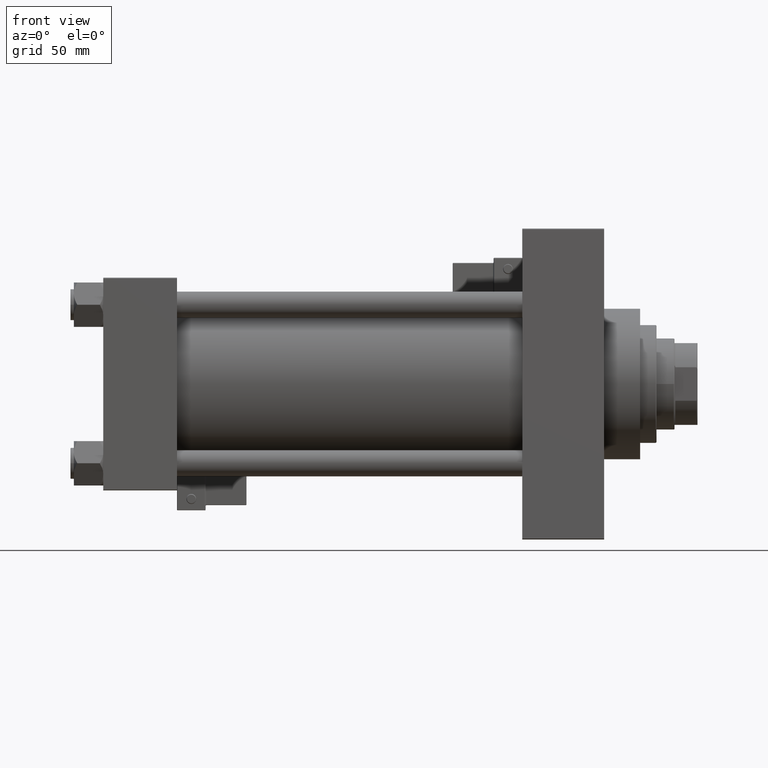
[diagram: clean part render]
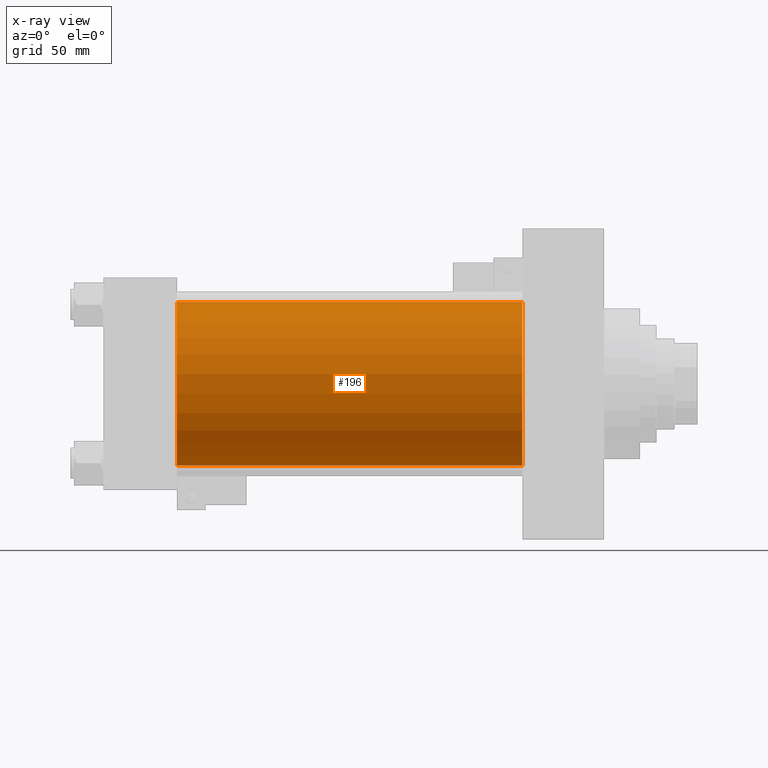
[diagram: x-ray — body ghosted, one internal face saturated and labeled with its STEP entity id]
A machine part, front view, then the same camera in x-ray: the body is ghosted and one INTERNAL B-rep face — a face not visible from any outside direction — is saturated and labeled: STEP entity #196.
In plain terms, the highlighted cylindrical surface (partial cylindrical patch) has radius 50 mm, axis along (-1, -0, -0).
Its self-contained STEP definition (entity closure, byte-faithful):
#21 = CARTESIAN_POINT ( 'NONE',  ( 256.0000000000000000, 3.521148781771555838E-15, -50.00000000000000000 ) ) ;
#196 = ADVANCED_FACE ( 'NONE', ( #2962 ), #30033, .F. ) ;
#227 = DIRECTION ( 'NONE',  ( 1.000000000000000000, 0.000000000000000000, 0.000000000000000000 ) ) ;
#1240 = VERTEX_POINT ( 'NONE', #47176 ) ;
#2962 = FACE_OUTER_BOUND ( 'NONE', #46068, .T. ) ;
#4714 = DIRECTION ( 'NONE',  ( 0.000000000000000000, 0.000000000000000000, -1.000000000000000000 ) ) ;
#6756 = DIRECTION ( 'NONE',  ( -1.000000000000000000, -0.000000000000000000, -0.000000000000000000 ) ) ;
#8563 = DIRECTION ( 'NONE',  ( 0.000000000000000000, 0.000000000000000000, -1.000000000000000000 ) ) ;
#10247 = CIRCLE ( 'NONE', #44111, 50.00000000000000000 ) ;
#11905 = DIRECTION ( 'NONE',  ( -1.000000000000000000, -0.000000000000000000, -0.000000000000000000 ) ) ;
#13447 = CARTESIAN_POINT ( 'NONE',  ( 45.00000000000000000, -2.602085213965210642E-15, 50.00000000000000000 ) ) ;
#13596 = CARTESIAN_POINT ( 'NONE',  ( 256.0000000000000000, -2.602085213965210642E-15, 50.00000000000000000 ) ) ;
#14691 = DIRECTION ( 'NONE',  ( -1.000000000000000000, -0.000000000000000000, -0.000000000000000000 ) ) ;
#16792 = CIRCLE ( 'NONE', #27301, 50.00000000000000000 ) ;
#18744 = CARTESIAN_POINT ( 'NONE',  ( 256.0000000000000000, 3.521148781771555838E-15, -50.00000000000000000 ) ) ;
#21123 = EDGE_CURVE ( 'NONE', #45427, #35701, #22533, .T. ) ;
#22533 = LINE ( 'NONE', #30619, #29129 ) ;
#24466 = VERTEX_POINT ( 'NONE', #21 ) ;
#27301 = AXIS2_PLACEMENT_3D ( 'NONE', #31583, #227, #8563 ) ;
#29129 = VECTOR ( 'NONE', #11905, 1000.000000000000000 ) ;
#30033 = CYLINDRICAL_SURFACE ( 'NONE', #45752, 50.00000000000000000 ) ;
#30619 = CARTESIAN_POINT ( 'NONE',  ( 256.0000000000000000, -2.602085213965210642E-15, 50.00000000000000000 ) ) ;
#31583 = CARTESIAN_POINT ( 'NONE',  ( 256.0000000000000000, -2.602085213965210642E-15, 0.000000000000000000 ) ) ;
#35701 = VERTEX_POINT ( 'NONE', #13447 ) ;
#36803 = ORIENTED_EDGE ( 'NONE', *, *, #45309, .T. ) ;
#39100 = CARTESIAN_POINT ( 'NONE',  ( 45.00000000000000000, -2.602085213965210642E-15, 0.000000000000000000 ) ) ;
#39346 = DIRECTION ( 'NONE',  ( 1.000000000000000000, 0.000000000000000000, 0.000000000000000000 ) ) ;
#40158 = VECTOR ( 'NONE', #14691, 1000.000000000000000 ) ;
#40513 = ORIENTED_EDGE ( 'NONE', *, *, #21123, .F. ) ;
#41392 = CARTESIAN_POINT ( 'NONE',  ( 256.0000000000000000, -2.602085213965210642E-15, 0.000000000000000000 ) ) ;
#42511 = ORIENTED_EDGE ( 'NONE', *, *, #43155, .F. ) ;
#43155 = EDGE_CURVE ( 'NONE', #35701, #1240, #10247, .T. ) ;
#44111 = AXIS2_PLACEMENT_3D ( 'NONE', #39100, #39346, #4714 ) ;
#44920 = DIRECTION ( 'NONE',  ( 0.000000000000000000, 0.000000000000000000, 1.000000000000000000 ) ) ;
#45309 = EDGE_CURVE ( 'NONE', #45427, #24466, #16792, .T. ) ;
#45427 = VERTEX_POINT ( 'NONE', #13596 ) ;
#45752 = AXIS2_PLACEMENT_3D ( 'NONE', #41392, #6756, #44920 ) ;
#46068 = EDGE_LOOP ( 'NONE', ( #36803, #47844, #42511, #40513 ) ) ;
#47176 = CARTESIAN_POINT ( 'NONE',  ( 45.00000000000000000, 3.521148781771555838E-15, -50.00000000000000000 ) ) ;
#47844 = ORIENTED_EDGE ( 'NONE', *, *, #48489, .T. ) ;
#48489 = EDGE_CURVE ( 'NONE', #24466, #1240, #49284, .T. ) ;
#49284 = LINE ( 'NONE', #18744, #40158 ) ;